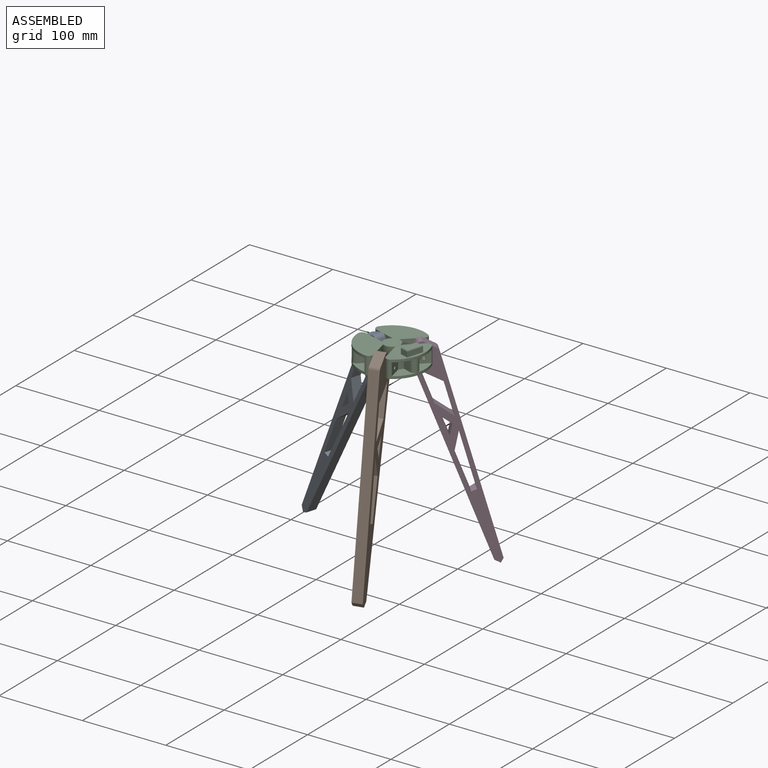
[diagram: assembled view]
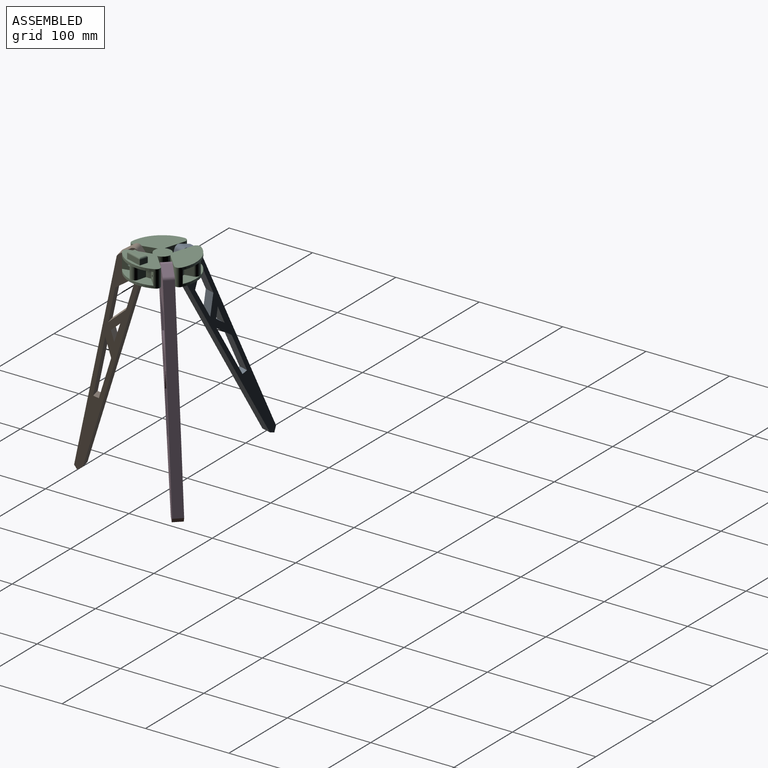
[diagram: assembled view, second angle]
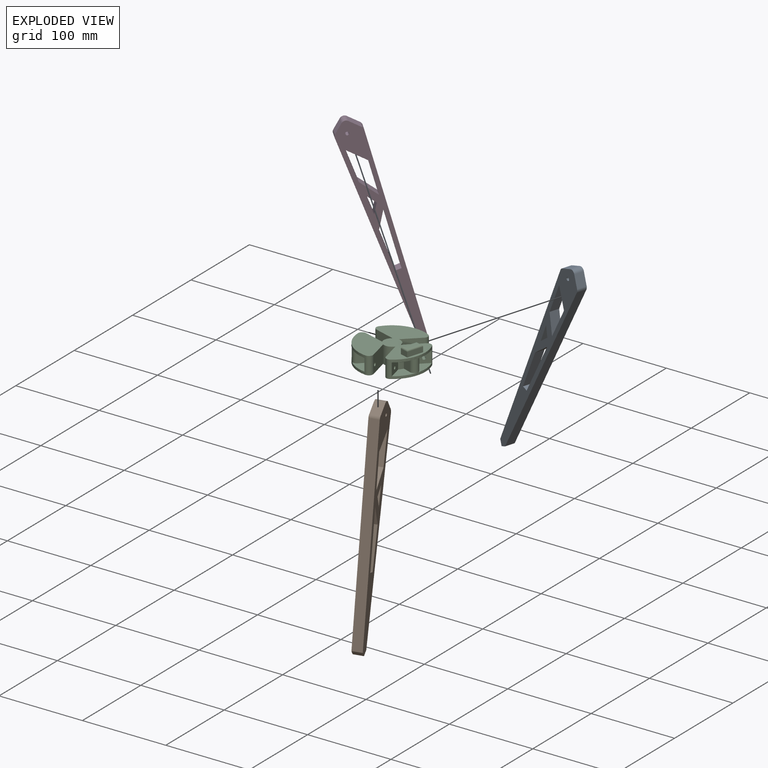
[diagram: exploded view]
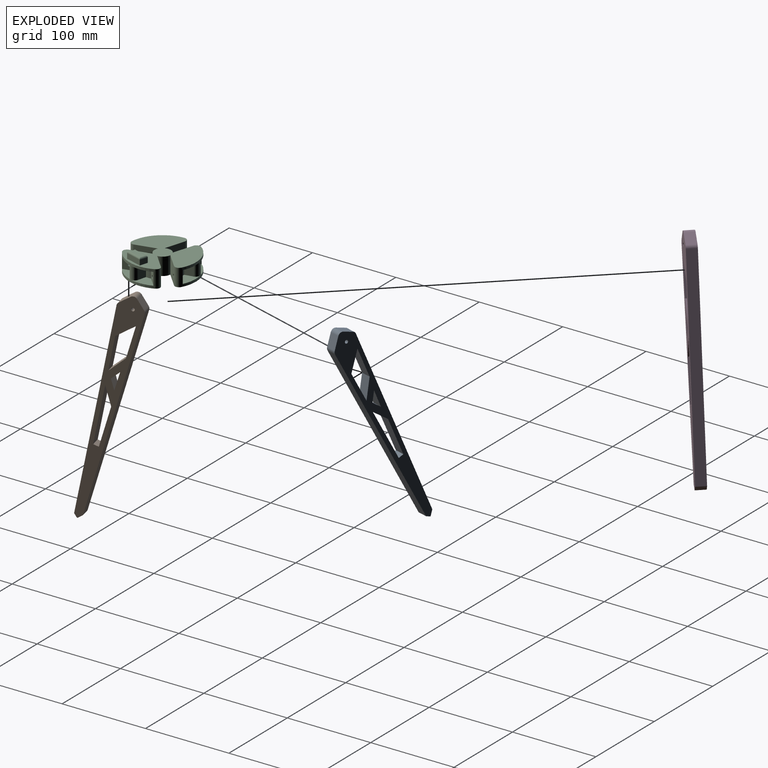
[diagram: exploded view, second angle]
ASSEMBLY  parts=4 mates=7
PART A: 23 faces, bbox 176.8x190x12 mm
  f0: plane 28.81x24.67mm, normal (-0.76,-0.65,0), area 455.1mm2, adj f13,f15,f16,f20
  f1: plane 28.19x27.62mm, normal (0.7,0.71,0), area 473.6mm2, adj f13,f15,f16,f20
  f2: plane 36.13x30.93mm, normal (-0.76,-0.65,0), area 570.8mm2, adj f15,f16,f17,f21
  f3: plane 12x5.73mm, normal (0,-1,0), area 68.7mm2, adj f4,f14,f15,f16
  f4: plane 12x7.44mm, normal (1,0,0), area 89.3mm2, adj f3,f5,f15,f16
  f5: plane 180.81x154.8mm, normal (0.76,0.65,0), area 2856.3mm2, adj f4,f6,f15,f16
  f6: cylinder r=5mm len=12mm, axis (0,0,-1), area 51.8mm2, adj f5,f7,f15,f16
  f7: plane 13.19x12mm, normal (0,1,0), area 158.3mm2, adj f6,f8,f15,f16
  f8: cylinder r=5mm len=12mm, axis (0,0,-1), area 94.2mm2, adj f7,f9,f15,f16
  f9: plane 15.29x12mm, normal (-1,0,0), area 183.4mm2, adj f8,f10,f15,f16
  f10: cylinder r=5mm len=12mm, axis (0,0,-1), area 47.7mm2, adj f9,f14,f15,f16
  f11: plane 48.24x47.27mm, normal (0.7,0.71,0), area 810.5mm2, adj f15,f16,f17,f21
  f12: cylinder r=2mm len=12mm, axis (0,0,-1), area 150.8mm2, adj f15,f16
  f13: plane 26.21x12mm, normal (1,0,0), area 314.5mm2, adj f0,f1,f15,f16
  f14: plane 169.56x166.14mm, normal (-0.7,-0.71,0), area 2848.7mm2, adj f3,f10,f15,f16
  f15: plane 190x176.79mm, normal (0,0,1), area 3765.5mm2, adj f0,f1,f2,f3,f4,f5,f6,f7
  f16: plane 190x176.79mm, normal (0,0,-1), area 3765.5mm2, adj f0,f1,f2,f3,f4,f5,f6,f7
  f17: plane 12x4.75mm, normal (-0.65,0.76,0), area 75mm2, adj f2,f11,f15,f16
  f18: plane 16.93x14.06mm, normal (-0.77,-0.64,0), area 264.1mm2, adj f15,f16,f19,f22
  f19: plane 12.23x12mm, normal (0.31,0.95,0), area 154.2mm2, adj f15,f16,f18,f22
  f20: plane 25.02x12mm, normal (-0.99,-0.14,0), area 303.2mm2, adj f0,f1,f15,f16
  f21: plane 22.06x12mm, normal (-0.31,-0.95,0), area 277.9mm2, adj f2,f11,f15,f16
  f22: plane 13.01x12mm, normal (0.99,0.14,0), area 157.6mm2, adj f15,f16,f18,f19
PART B: same geometry as A
PART C: 71 faces, bbox 80x79.8x29 mm
  f0: plane 79.97x79.81mm, normal (0,0,1), area 3574.2mm2, adj f10,f11,f13,f14,f15,f16,f17,f18
  f1: cylinder r=25mm len=15mm, axis (0,0,-1), area 90.6mm2, adj f29,f38,f43,f59
  f2: plane 21.44x19.52mm, normal (0,0,1), area 215.7mm2, adj f11,f30,f31,f58,f60
  f3: plane 21.44x19.52mm, normal (0,0,-1), area 215.7mm2, adj f11,f30,f31,f58,f60
  f4: cylinder r=25mm len=15mm, axis (0,0,-1), area 90.6mm2, adj f37,f40,f41,f55
  f5: plane 26.37x15.49mm, normal (0,0,1), area 215.7mm2, adj f20,f35,f36,f54,f56
  f6: plane 26.37x15.49mm, normal (0,0,-1), area 215.7mm2, adj f20,f35,f36,f54,f56
  f7: cylinder r=25mm len=15mm, axis (0,0,-1), area 90.6mm2, adj f34,f39,f42,f51
  f8: plane 24.26x18.8mm, normal (0,0,1), area 215.7mm2, adj f10,f32,f33,f50,f52
  f9: plane 24.26x18.8mm, normal (0,0,-1), area 215.7mm2, adj f10,f32,f33,f50,f52
  f10: cylinder r=40mm len=38.11mm, axis (0,0,-1), area 385.9mm2, adj f0,f8,f9,f12,f27,f28,f32,f34
  f11: cylinder r=40mm len=50.07mm, axis (0,0,-1), area 385.9mm2, adj f0,f2,f3,f12,f23,f24,f29,f30
  f12: plane 79.97x79.81mm, normal (0,0,-1), area 3774.2mm2, adj f10,f11,f13,f14,f15,f16,f17,f18
  f13: plane 24.78x21mm, normal (-0.97,-0.23,0), area 522mm2, adj f0,f12,f22,f23,f47
  f14: plane 21x18.55mm, normal (-0.68,0.73,0), area 522mm2, adj f0,f12,f15,f24,f44
  f15: cylinder r=10mm len=21mm, axis (0,0,-1), area 297.2mm2, adj f0,f12,f14,f16
  f16: plane 21x18.55mm, normal (0.68,-0.73,0), area 522mm2, adj f0,f12,f15,f25,f45
  f17: plane 24.37x21mm, normal (-0.29,-0.96,0), area 522mm2, adj f0,f12,f18,f26,f48
  f18: cylinder r=10mm len=21mm, axis (0,0,-1), area 297.2mm2, adj f0,f12,f17,f19
  f19: plane 24.37x21mm, normal (0.29,0.96,0), area 522mm2, adj f0,f12,f18,f27,f49
  f20: cylinder r=40mm len=50.91mm, axis (0,0,-1), area 385.9mm2, adj f0,f5,f6,f12,f25,f26,f35,f37
  f21: plane 24.78x21mm, normal (0.97,0.23,0), area 522mm2, adj f0,f12,f22,f28,f46
  f22: cylinder r=10mm len=21mm, axis (0,0,-1), area 297.2mm2, adj f0,f12,f13,f21
  f23: cylinder r=5mm len=21mm, axis (0,0,-1), area 200.1mm2, adj f0,f11,f12,f13
  f24: cylinder r=5mm len=21mm, axis (0,0,-1), area 200.1mm2, adj f0,f11,f12,f14
  f25: cylinder r=5mm len=21mm, axis (0,0,-1), area 200.1mm2, adj f0,f12,f16,f20
  f26: cylinder r=5mm len=21mm, axis (0,0,-1), area 200.1mm2, adj f0,f12,f17,f20
  f27: cylinder r=5mm len=21mm, axis (0,0,-1), area 200.1mm2, adj f0,f10,f12,f19
  f28: cylinder r=5mm len=21mm, axis (0,0,-1), area 200.1mm2, adj f0,f10,f12,f21
  f29: plane 15x12.33mm, normal (0.68,-0.73,0), area 241.1mm2, adj f1,f11,f38,f43,f44
  f30: plane 16.47x15mm, normal (0.97,0.23,0), area 241.1mm2, adj f2,f3,f11,f31,f47
  f31: cylinder r=25mm len=15mm, axis (0,0,-1), area 90.6mm2, adj f2,f3,f30,f58
  f32: plane 16.19x15mm, normal (-0.29,-0.96,0), area 241.1mm2, adj f8,f9,f10,f33,f49
  f33: cylinder r=25mm len=15mm, axis (0,0,-1), area 90.6mm2, adj f8,f9,f32,f50
  f34: plane 16.47x15mm, normal (-0.97,-0.23,0), area 241.1mm2, adj f7,f10,f39,f42,f46
  f35: plane 15x12.33mm, normal (-0.68,0.73,0), area 241.1mm2, adj f5,f6,f20,f36,f45
  f36: cylinder r=25mm len=15mm, axis (0,0,-1), area 90.6mm2, adj f5,f6,f35,f54
  f37: plane 16.19x15mm, normal (0.29,0.96,0), area 241.1mm2, adj f4,f20,f40,f41,f48
  f38: plane 26.49x15.23mm, normal (0,0,1), area 215.7mm2, adj f1,f11,f29,f59,f61
  f39: plane 23.55x19.4mm, normal (0,0,1), area 215.7mm2, adj f7,f10,f34,f51,f53
  f40: plane 22.34x19.17mm, normal (0,0,1), area 215.7mm2, adj f4,f20,f37,f55,f57
  f41: plane 22.34x19.17mm, normal (0,0,-1), area 215.7mm2, adj f4,f20,f37,f55,f57
  f42: plane 23.55x19.4mm, normal (0,0,-1), area 215.7mm2, adj f7,f10,f34,f51,f53
  f43: plane 26.49x15.23mm, normal (0,0,-1), area 215.7mm2, adj f1,f11,f29,f59,f61
  f44: cylinder r=2mm len=8.57mm, axis (-0.68,0.73,0), area 100.5mm2, adj f14,f29
  f45: cylinder r=2mm len=8.57mm, axis (-0.68,0.73,0), area 100.5mm2, adj f16,f35
  f46: cylinder r=2mm len=8.7mm, axis (0.97,0.23,0), area 100.5mm2, adj f21,f34
  f47: cylinder r=2mm len=8.7mm, axis (0.97,0.23,0), area 100.5mm2, adj f13,f30
  f48: cylinder r=2mm len=8.81mm, axis (-0.29,-0.96,0), area 100.5mm2, adj f17,f37
  f49: cylinder r=2mm len=8.81mm, axis (-0.29,-0.96,0), area 100.5mm2, adj f19,f32
  f50: plane 15x7.73mm, normal (-0.66,0.75,0), area 154mm2, adj f8,f9,f33,f52
  f51: plane 15x7.29mm, normal (0.71,-0.7,0), area 154mm2, adj f7,f39,f42,f53
  f52: cylinder r=5mm len=15mm, axis (0,0,-1), area 120.5mm2, adj f8,f9,f10,f50
  f53: cylinder r=5mm len=15mm, axis (0,0,-1), area 120.5mm2, adj f10,f39,f42,f51
  f54: plane 15x10.07mm, normal (0.98,0.19,0), area 154mm2, adj f5,f6,f36,f56
  f55: plane 15x9.9mm, normal (-0.96,-0.26,0), area 154mm2, adj f4,f40,f41,f57
  f56: cylinder r=5mm len=15mm, axis (0,0,-1), area 120.5mm2, adj f5,f6,f20,f54
  f57: cylinder r=5mm len=15mm, axis (0,0,-1), area 120.5mm2, adj f20,f40,f41,f55
  f58: plane 15x9.71mm, normal (-0.32,-0.95,0), area 154mm2, adj f2,f3,f31,f60
  f59: plane 15x9.93mm, normal (0.25,0.97,0), area 154mm2, adj f1,f38,f43,f61
  f60: cylinder r=5mm len=15mm, axis (0,0,-1), area 120.5mm2, adj f2,f3,f11,f58
  f61: cylinder r=5mm len=15mm, axis (0,0,-1), area 120.5mm2, adj f11,f38,f43,f59
  f62: plane 19.15x6mm, normal (-0.96,0.29,0), area 120mm2, adj f0,f63,f65,f67
  f63: plane 9.57x6mm, normal (-0.29,-0.96,0), area 60mm2, adj f0,f62,f64,f69
  f64: plane 19.15x6mm, normal (0.96,-0.29,0), area 120mm2, adj f0,f63,f65,f70
  f65: plane 9.57x6mm, normal (0.29,0.96,0), area 60mm2, adj f0,f62,f64,f68
  f66: plane 17.05x10.36mm, normal (0,0,1), area 96mm2, adj f67,f68,f69,f70
  f67: cylinder r=2mm len=19.73mm, axis (0.29,0.96,0), area 58.3mm2, adj f62,f66,f68,f69
  f68: cylinder r=2mm len=10.15mm, axis (0.96,-0.29,0), area 26.8mm2, adj f65,f66,f67,f70
  f69: cylinder r=2mm len=10.15mm, axis (-0.96,0.29,0), area 26.8mm2, adj f63,f66,f67,f70
  f70: cylinder r=2mm len=19.73mm, axis (-0.29,-0.96,0), area 58.3mm2, adj f64,f66,f68,f69
PART D: same geometry as A
PLACE A rot(axis=(0,0.72,0.69),156.4deg) t=(-170.09,-21.88,-19.8)mm
PLACE B rot(axis=(0.16,0.92,0.37),99deg) t=(-86.09,-37.34,-56.87)mm
PLACE C t=(-31.32,-104.61,-5.96)mm fixed
PLACE D rot(axis=(-0.56,0.44,0.7),167.4deg) t=(-76.08,-51.2,-59.7)mm
MATE planar C.f14 <-> D.f16  axis (-0.68,0.73,0) through (-58.59,-34.77,12.04)mm
MATE planar C.f17 <-> A.f10  axis (-0.29,-0.96,0) through (-95.24,-31.92,1.58)mm
MATE revolute C.f44 <-> D.f12  axis (-0.68,0.73,0) through (-52.01,-28.59,0.04)mm
MATE revolute C.f48 <-> A.f12  axis (-0.29,-0.96,0) through (-104.09,-29.25,0.04)mm
MATE revolute C.f46 <-> B.f12  axis (0.97,0.23,0) through (-77.47,-74.02,0.04)mm
MATE planar D.f16 <-> C.f14  axis (0.68,-0.73,0) through (-28.5,-6.5,-92.39)mm
MATE planar C.f21 <-> B.f16  axis (0.97,0.23,0) through (-79.59,-65.02,1.58)mm
